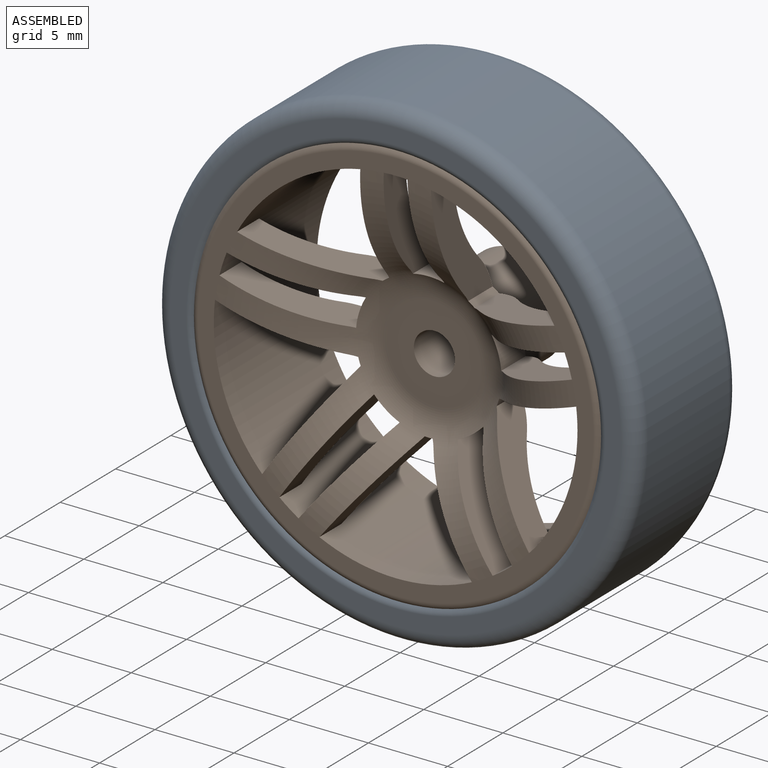
[diagram: assembled view]
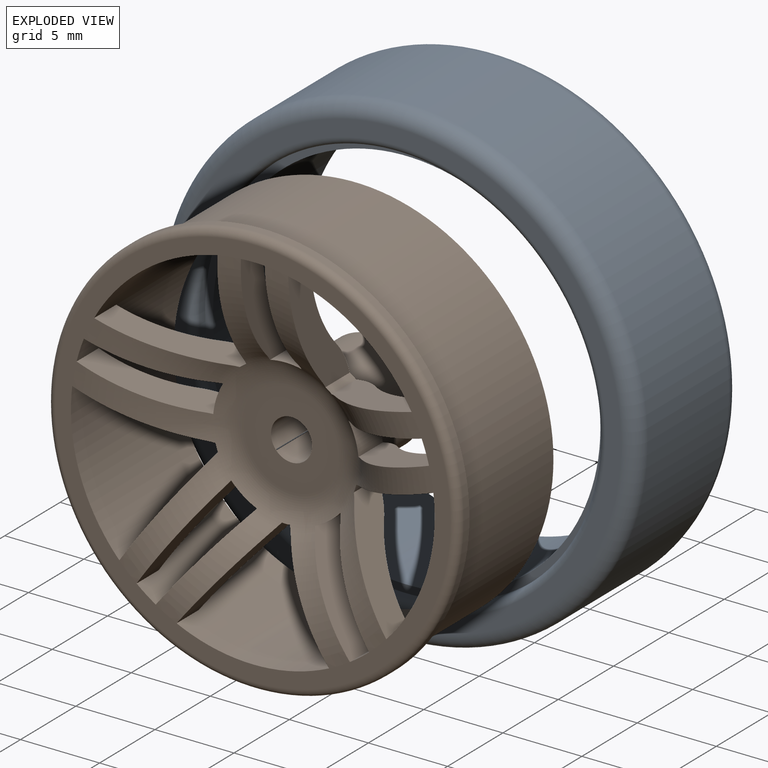
[diagram: exploded view]
GUIDED TOUR — FREECAD ASSEMBLY "5SpokeWheel1"

This assembly has 2 components, labeled P0..P1 below (a component is one placed body or linked part; the same part can appear more than once), held together by 1 modeled joint. A joint is a constraint between two components; its type names the relative motion it leaves free:
  FASTENED — locks the two components together rigidly (no relative motion).
Axis/direction vectors are unit vectors and 'through' points are millimeter coordinates, both in the assembly's world frame.

MATES
  1. FASTENED [Fixed] "Joint": P1 <-> P0, direction (0.000, -1.000, 0.000) through (0.00, -4.40, 0.00) mm

ASSEMBLY ORDER
  1. P0 — the base component [order heuristic]
  2. P1 [order heuristic]
Order-tag legend:
  [order heuristic] — this assembly is geometrically interlocked (no collision-free removal order exists), so components are listed in mate-graph order; insertion feasibility is not verified.

Of the 2 components, 2 carry a construction recipe — the FreeCAD feature program (sketches with constraints, then the solid features that consume them) that regenerates the part from scratch, quoted from this document or from the linked companion document it references; the rest are supplied as boundary geometry only. The tour below walks the components in assembly order: each is shown spotlighted twice — in the assembled view, then in the exploded view, where a leader line traces a displaced component back to its assembled socket (components that stay in place when exploded have no leader line; saturated green if recipe-attached, orange if geometry-only; every other component desaturated gray) — followed by its recipe or geometry summary and the mates that hold it.
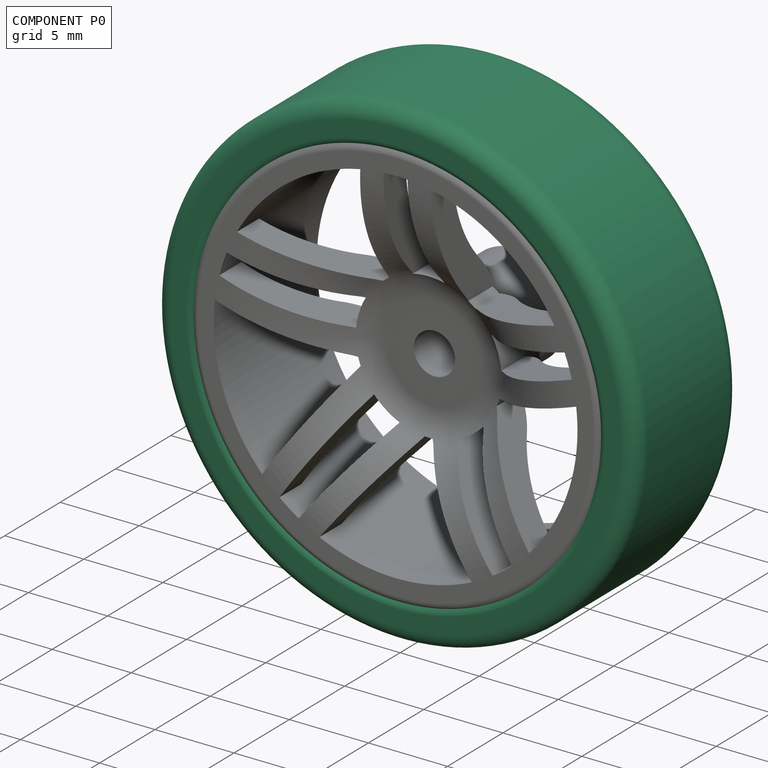
[diagram: component P0 — assembled]
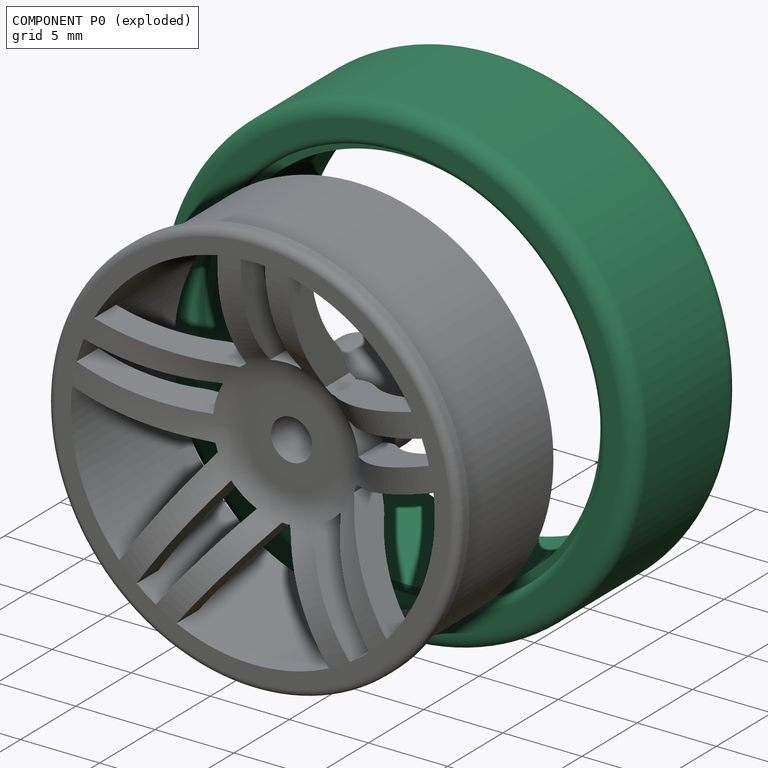
[diagram: component P0 — exploded]
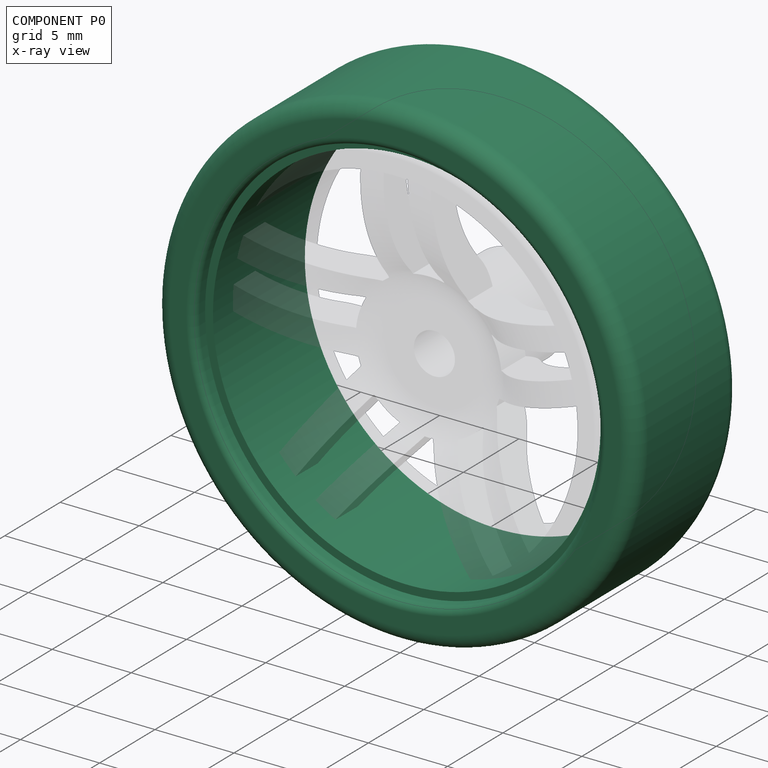
[diagram: component P0 — x-ray view]
COMPONENT P0 — recipe-attached ("SingleTire", a linked part whose construction recipe lives in a companion FreeCAD document of the same project; that document's serialized recipe follows).
Held by: FASTENED mate "Joint" to P1.
Construction recipe (the companion document, serialized — sketch geometry with constraints, then the solid features built on it; lengths are millimeters unless a unit is written):

FCSTD DOCUMENT  (FreeCAD 1.0R39285 (Git))
Label: Tire
License: All rights reserved
LicenseURL: https://en.wikipedia.org/wiki/All_rights_reserved
objects: PartDesign::Fillet×2, Sketcher::SketchObject×1, PartDesign::Revolution×1, App::Link×1, PartDesign::Body×1
note: 12 computed .brp shape members not serialized (recipe doc carries the construction recipe); baked Part::Feature solids carry a one-line shape summary decoded from their .brp
EXTERNAL_REF file=Dished5SpokeRim.FCStd obj=Link

FEATURE [Sketcher::SketchObject] Sketch
  ArcFitTolerance = 1e-06
  AttachmentSupport = -> [XY_Plane]
  FullyConstrained = false
  MakeInternals = false
  MapMode = 5
  expr: Constraints[15] = <<Wheel>>.Diameter
  expr: Constraints[31] = <<Wheel>>.TireThicnkess
  expr: Constraints[33] = <<Wheel>>.SingleThickness - <<Wheel>>.StemPoke
  expr: Constraints[35] = <<Wheel>>.TireBeadWidth
  expr: Constraints[36] = <<Wheel>>.RimLipThickness
  sketch-geometry (16):
    g0: LineSegment [constr] StartX=-1.3 StartY=6.15 StartZ=0 EndX=-1.3 EndY=-4.65 EndZ=0
    g1: LineSegment [constr] StartX=-1.3 StartY=-4.65 StartZ=0 EndX=-15.25 EndY=-4.65 EndZ=0
    g2: LineSegment [constr] StartX=-15.25 StartY=-4.65 StartZ=0 EndX=-15.25 EndY=4.65 EndZ=0
    g3: LineSegment [constr] StartX=-15.25 StartY=4.65 StartZ=0 EndX=-3.25 EndY=4.65 EndZ=0
    g4: LineSegment [constr] StartX=-3.25 StartY=4.65 StartZ=0 EndX=-3.25 EndY=6.15 EndZ=0
    g5: LineSegment [constr] StartX=-3.25 StartY=6.15 StartZ=0 EndX=-1.3 EndY=6.15 EndZ=0
    g6: LineSegment StartX=15.25 StartY=-4.65 StartZ=0 EndX=15.25 EndY=4.65 EndZ=0
    g7: LineSegment [constr] StartX=15.25 StartY=4.65 StartZ=0 EndX=12.75 EndY=4.65 EndZ=0
    g8: LineSegment [constr] StartX=12.75 StartY=4.65 StartZ=0 EndX=12.75 EndY=3.65 EndZ=0
    g9: LineSegment [constr] StartX=12.75 StartY=3.65 StartZ=0 EndX=12.25 EndY=3.65 EndZ=0
    g10: LineSegment [constr] StartX=12.25 StartY=3.65 StartZ=0 EndX=12.25 EndY=-3.65 EndZ=0
    g11: LineSegment StartX=12.25 StartY=-3.65 StartZ=0 EndX=12.75 EndY=-3.65 EndZ=0
    g12: LineSegment StartX=12.75 StartY=-3.65 StartZ=0 EndX=12.75 EndY=-4.65 EndZ=0
    g13: LineSegment StartX=12.75 StartY=-4.65 StartZ=0 EndX=15.25 EndY=-4.65 EndZ=0
    g14: LineSegment StartX=12.25 StartY=-3.65 StartZ=0 EndX=12.25 EndY=4.65 EndZ=0
    g15: LineSegment StartX=12.25 StartY=4.65 StartZ=0 EndX=15.25 EndY=4.65 EndZ=0
  constraints (44):
    c: Vertical(g0)
    c: Coincident(g0,g1)
    c: Horizontal(g1)
    c: Coincident(g1,g2)
    c: Vertical(g2)
    c: Coincident(g2,g3)
    c: Horizontal(g3)
    c: Coincident(g3,g4)
    c: Vertical(g4)
    c: Coincident(g4,g5)
    c: Coincident(g5,g0)
    c: Horizontal(g5)
    c: Coincident(g6,g7)
    c: Horizontal(g7)
    c: Equal(g2,g6)
    c: DistanceX(g1,g6) = 30.5
    c: Symmetric(g6,g6,g-1)
    c: Coincident(g7,g8)
    c: Coincident(g8,g9)
    c: Horizontal(g9)
    c: Coincident(g9,g10)
    c: Vertical(g10)
    c: Coincident(g10,g11)
    c: Horizontal(g11)
    c: Coincident(g11,g12)
    c: Vertical(g12)
    c: Coincident(g12,g13)
    c: Coincident(g13,g6)
    c: Horizontal(g13)
    c: Vertical(g8)
    c: Equal(g8,g12)
    c: Distance(g13,g13) = 2.5
    c: Symmetric(g1,g6,g-2)
    c: DistanceY(g6,g6) = 9.3
    c: Equal(g13,g7)
    c: DistanceX(g11,g11) = 0.5
    c: DistanceY(g12,g12) = 1
    c: Coincident(g10,g14)
    c: Vertical(g14)
    c: Coincident(g14,g15)
    c: Coincident(g15,g6)
    c: Horizontal(g15)
    c: DistanceX(g-1,g12) = 12.75
    c: DistanceX(g-1,g10) = 12.25
FEATURE [PartDesign::Revolution] Revolution
  Angle = 360
  Angle2 = 60
  Axis = (0,1,0)
  Base = (0,0,0)
  Profile = -> Sketch
  ReferenceAxis = -> Sketch [V_Axis]
  Refine = true
  Reversed = true
  Suppressed = false
  Type = 0
FEATURE [PartDesign::Fillet] Fillet
  Base = -> Revolution [Edge3]
  BaseFeature = -> Revolution
  Radius = 0.5
  Refine = true
  SupportTransform = false
  Suppressed = false
  UseAllEdges = false
FEATURE [App::Link] Link001  label="Wheel"
  LinkedObject = -> <external Dished5SpokeRim.FCStd>#Link
FEATURE [PartDesign::Fillet] Fillet001
  Base = -> Fillet [Edge10,Edge7]
  BaseFeature = -> Fillet
  Radius = 1
  Refine = true
  SupportTransform = false
  Suppressed = false
  UseAllEdges = false
FEATURE [PartDesign::Body] Body  label="SingleTire"
  AllowCompound = false
  Group = -> [Sketch,Revolution,Fillet,Fillet001]
  Origin = -> Origin
  Tip = -> Fillet001
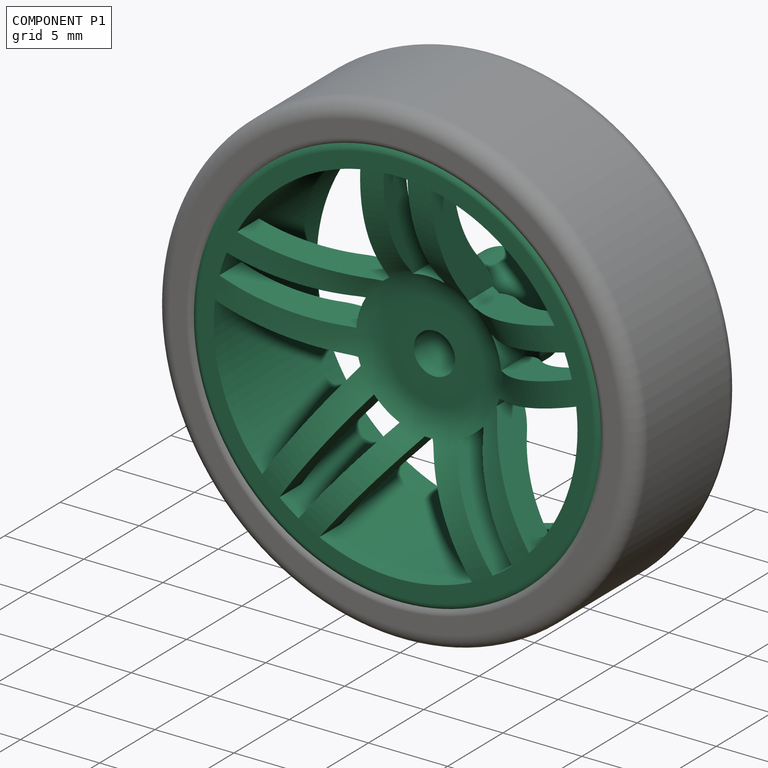
[diagram: component P1 — assembled]
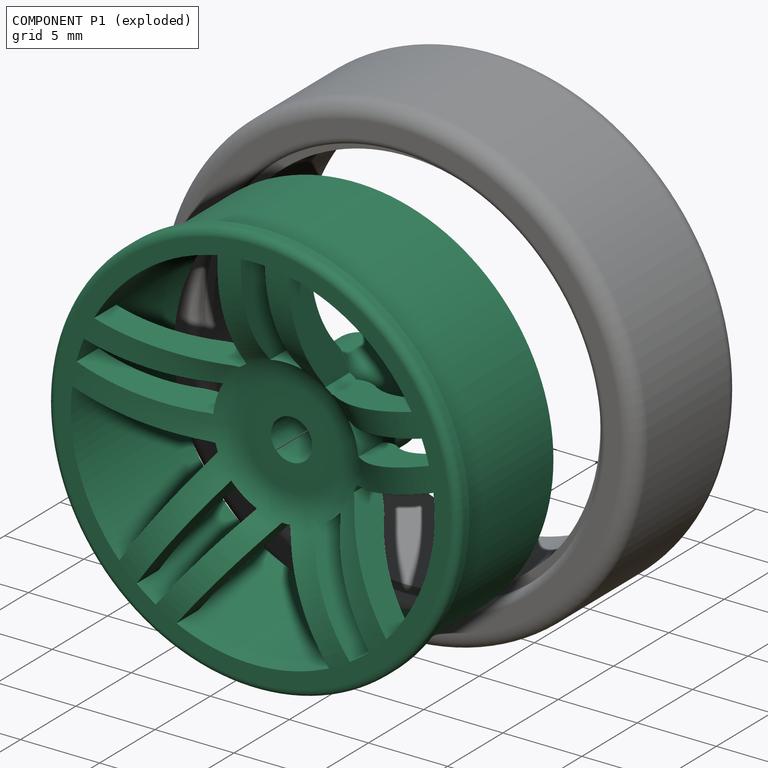
[diagram: component P1 — exploded]
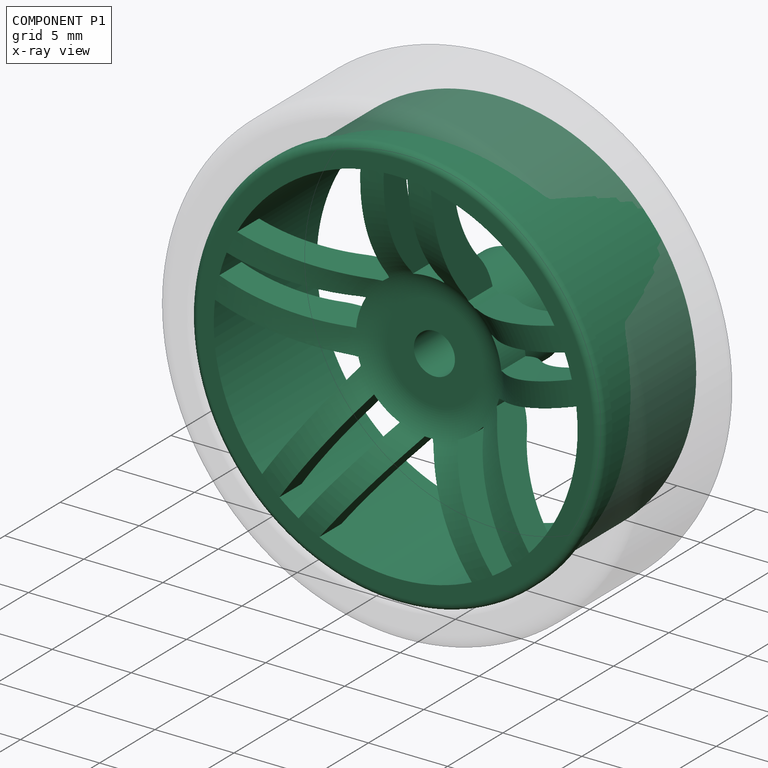
[diagram: component P1 — x-ray view]
COMPONENT P1 — recipe-attached ("5SpokeRim1", a linked part whose construction recipe lives in a companion FreeCAD document of the same project; that document's serialized recipe follows).
Held by: FASTENED mate "Joint" to P0.
Construction recipe (the companion document, serialized — sketch geometry with constraints, then the solid features built on it; lengths are millimeters unless a unit is written):

FCSTD DOCUMENT  (FreeCAD 1.0R39285 (Git))
Label: 5SpokeRim1
License: All rights reserved
LicenseURL: https://en.wikipedia.org/wiki/All_rights_reserved
objects: Sketcher::SketchObject×2, PartDesign::Revolution×1, PartDesign::Pocket×1, PartDesign::PolarPattern×1, App::Link×1, PartDesign::Fillet×1, PartDesign::Body×1
note: 16 computed .brp shape members not serialized (recipe doc carries the construction recipe); baked Part::Feature solids carry a one-line shape summary decoded from their .brp
EXTERNAL_REF file=../../../../Dimentions.FCStd obj=dd002

FEATURE [Sketcher::SketchObject] Sketch
  ArcFitTolerance = 1e-06
  AttachmentSupport = -> [XY_Plane]
  FullyConstrained = true
  MakeInternals = false
  MapMode = 5
  expr: Constraints[33] = <<Wheel>>.SingleThickness
  expr: Constraints[34] = <<Wheel>>.RimDiameter
  expr: Constraints[35] = <<Wheel>>.StemDiameter
  expr: Constraints[36] = <<Wheel>>.StemPoke
  expr: Constraints[37] = <<Wheel>>.AxelHoleDiameter
  expr: Constraints[52] = <<Wheel>>.RimLipThickness
  expr: Constraints[53] = <<Wheel>>.TireBeadWidth
  expr: Constraints[63] = <<Wheel>>.HubDip
  sketch-geometry (29):
    g0: LineSegment [constr] StartX=-1.3 StartY=5.4 StartZ=0 EndX=-1.3 EndY=-5.4 EndZ=0
    g1: LineSegment [constr] StartX=-1.3 StartY=-5.4 StartZ=0 EndX=-13 EndY=-5.4 EndZ=0
    g2: LineSegment [constr] StartX=-13 StartY=-5.4 StartZ=0 EndX=-13 EndY=3.9 EndZ=0
    g3: LineSegment [constr] StartX=-13 StartY=3.9 StartZ=0 EndX=-3.25 EndY=3.9 EndZ=0
    g4: LineSegment [constr] StartX=-3.25 StartY=3.9 StartZ=0 EndX=-3.25 EndY=5.4 EndZ=0
    g5: LineSegment [constr] StartX=-3.25 StartY=5.4 StartZ=0 EndX=-1.3 EndY=5.4 EndZ=0
    g6: LineSegment [constr] StartX=1.3 StartY=5.4 StartZ=0 EndX=1.3 EndY=-5.4 EndZ=0
    g7: LineSegment [constr] StartX=1.3 StartY=-5.4 StartZ=0 EndX=13 EndY=-5.4 EndZ=0
    g8: LineSegment [constr] StartX=13 StartY=-5.4 StartZ=0 EndX=13 EndY=3.9 EndZ=0
    g9: LineSegment [constr] StartX=13 StartY=3.9 StartZ=0 EndX=11.5 EndY=3.9 EndZ=0
    g10: LineSegment [constr] StartX=11.5 StartY=3.9 StartZ=0 EndX=11.5 EndY=-1.4 EndZ=0
    g11: LineSegment [constr] StartX=11.5 StartY=-1.4 StartZ=0 EndX=3.25 EndY=-1.4 EndZ=0
    g12: LineSegment [constr] StartX=3.25 StartY=-1.4 StartZ=0 EndX=3.25 EndY=5.4 EndZ=0
    g13: LineSegment StartX=3.25 StartY=5.4 StartZ=0 EndX=1.3 EndY=5.4 EndZ=0
    g14: LineSegment [constr] StartX=11.5 StartY=-1.4 StartZ=0 EndX=11.5 EndY=-5.4 EndZ=0
    g15: LineSegment StartX=11.5 StartY=3.9 StartZ=0 EndX=12.5 EndY=3.9 EndZ=0
    g16: LineSegment StartX=12.5 StartY=3.9 StartZ=0 EndX=12.5 EndY=-4.4 EndZ=0
    g17: LineSegment StartX=12.5 StartY=-4.4 StartZ=0 EndX=13 EndY=-4.4 EndZ=0
    g18: LineSegment StartX=13 StartY=-4.4 StartZ=0 EndX=13 EndY=-5.4 EndZ=0
    g19: LineSegment StartX=1.3 StartY=5.4 StartZ=0 EndX=1.3 EndY=-1.9 EndZ=0
    g20: LineSegment StartX=1.3 StartY=-1.9 StartZ=0 EndX=3 EndY=-1.9 EndZ=0
    g21: ArcOfCircle CenterX=3 CenterY=-4.67143 CenterZ=0 NormalX=0 NormalY=0 NormalZ=1 AngleXU=0 Radius=2.77143 StartAngle=0.789582 EndAngle=1.5708
    g22: ArcOfCircle CenterX=11.5 CenterY=3.9 CenterZ=0 NormalX=0 NormalY=0 NormalZ=1 AngleXU=0 Radius=9.3 StartAngle=3.93117 EndAngle=4.71239
    g23: LineSegment StartX=11.5 StartY=-5.4 StartZ=0 EndX=13 EndY=-5.4 EndZ=0
    g24: LineSegment StartX=3.25 StartY=5.4 StartZ=0 EndX=3.25 EndY=-0.00294118 EndZ=0
    g25: ArcOfCircle CenterX=3.25 CenterY=-4.41933 CenterZ=0 NormalX=0 NormalY=0 NormalZ=1 AngleXU=0 Radius=4.41639 StartAngle=0.789582 EndAngle=1.5708
    g26: ArcOfCircle CenterX=11.5 CenterY=3.9 CenterZ=0 NormalX=0 NormalY=0 NormalZ=1 AngleXU=0 Radius=7.3 StartAngle=3.93117 EndAngle=4.71239
    g27: LineSegment StartX=11.5 StartY=-3.4 StartZ=0 EndX=11.5 EndY=3.9 EndZ=0
    g28: LineSegment [constr] StartX=4.95148 StartY=-2.70355 StartZ=0 EndX=6.35976 EndY=-1.28343 EndZ=0
  constraints (78):
    c: Vertical(g0)
    c: Coincident(g0,g1)
    c: Horizontal(g1)
    c: Coincident(g1,g2)
    c: Vertical(g2)
    c: Coincident(g2,g3)
    c: Horizontal(g3)
    c: Coincident(g3,g4)
    c: Vertical(g4)
    c: Coincident(g4,g5)
    c: Coincident(g5,g0)
    c: Horizontal(g5)
    c: Coincident(g6,g7)
    c: Horizontal(g7)
    c: Coincident(g7,g8)
    c: Vertical(g8)
    c: Coincident(g8,g9)
    c: Horizontal(g9)
    c: Coincident(g9,g10)
    c: Vertical(g10)
    c: Coincident(g10,g11)
    c: Horizontal(g11)
    c: Coincident(g11,g12)
    c: Vertical(g12)
    c: Coincident(g12,g13)
    c: Coincident(g13,g6)
    c: Symmetric(g0,g6,g-2)
    c: Horizontal(g13)
    c: Equal(g13,g5)
    c: Symmetric(g6,g6,g-1)
    c: Equal(g0,g6)
    c: Equal(g2,g8)
    c: Equal(g1,g7)
    c: DistanceY(g6,g6) = 10.8
    c: DistanceX(g1,g7) = 26
    c: Distance(g4,g12) = 6.5
    c: DistanceY(g9,g12) = 1.5
    c: Distance(g0,g6) = 2.6
    c: DistanceX(g10,g7) = 1.5
    c: Coincident(g14,g10)
    c: PointOnObject(g14,g7)
    c: Vertical(g14)
    c: DistanceY(g14,g14) = 4
    c: Coincident(g9,g15)
    c: PointOnObject(g15,g9)
    c: Coincident(g15,g16)
    c: Vertical(g16)
    c: Coincident(g16,g17)
    c: Horizontal(g17)
    c: Coincident(g17,g18)
    c: Coincident(g18,g7)
    c: Vertical(g18)
    c: DistanceY(g18,g18) = 1
    c: DistanceX(g17,g17) = 0.5
    c: Coincident(g6,g19)
    c: PointOnObject(g19,g6)
    c: Coincident(g19,g20)
    c: Horizontal(g20)
    c: Tangent(g20,g21) = 1.5708
    c: Tangent(g21,g22) = 1.5708
    c: Coincident(g22,g14)
    c: Tangent(g22,g23) = -1.5708
    c: Coincident(g23,g7)
    c: DistanceY(g6,g19) = 3.5
    c: DistanceX(g-1,g20) = 3
    c: Coincident(g12,g24)
    c: PointOnObject(g24,g12)
    c: Perpendicular(g24,g25) = 4.71239
    c: Tangent(g25,g26) = 1.5708
    c: Perpendicular(g26,g27) = 1.5708
    c: Coincident(g27,g9)
    c: Vertical(g27)
    c: Horizontal(g26,g9)
    c: DistanceY(g14,g26) = 2
    c: Coincident(g28,g21)
    c: Coincident(g28,g25)
    c: Perpendicular(g22,g28)
    c: Perpendicular(g26,g28)
FEATURE [PartDesign::Revolution] Revolution
  Angle = 360
  Angle2 = 60
  Axis = (0,1,0)
  Base = (0,0,0)
  Profile = -> Sketch
  ReferenceAxis = -> Sketch [V_Axis]
  Refine = true
  Reversed = true
  Suppressed = false
  Type = 0
FEATURE [Sketcher::SketchObject] Sketch001
  ArcFitTolerance = 1e-06
  AttachmentSupport = -> [XZ_Plane]
  ExternalGeometry = -> [Revolution]
  FullyConstrained = true
  MakeInternals = false
  MapMode = 5
  Placement = pos=(0,0,0) rot=(1,0,0;1.5708rad)
  sketch-geometry (18):
    g0: LineSegment StartX=-0.75 StartY=11.4755 StartZ=0 EndX=-1 EndY=4.5 EndZ=0
    g1: LineSegment [constr] StartX=-1 StartY=4.5 StartZ=0 EndX=1 EndY=4.5 EndZ=0
    g2: LineSegment StartX=1 StartY=4.5 StartZ=0 EndX=0.75 EndY=11.4755 EndZ=0
    g3: LineSegment [constr] StartX=0.75 StartY=11.4755 StartZ=0 EndX=-0.75 EndY=11.4755 EndZ=0
    g4: Circle [constr] CenterX=0 CenterY=0 CenterZ=0 NormalX=0 NormalY=0 NormalZ=1 AngleXU=0 Radius=4.60977
    g5: LineSegment [constr] StartX=0 StartY=0 StartZ=0 EndX=10.9371 EndY=3.5537 EndZ=0
    g6: LineSegment [constr] StartX=3.97074 StartY=2.34163 StartZ=0 EndX=4.58877 EndY=0.43952 EndZ=0
    g7: LineSegment [constr] StartX=4.58877 StartY=0.43952 StartZ=0 EndX=11.1456 EndY=2.83284 EndZ=0
    g8: LineSegment [constr] StartX=3.97074 StartY=2.34163 StartZ=0 EndX=10.6821 EndY=4.25942 EndZ=0
    g9: LineSegment [constr] StartX=10.6821 StartY=4.25942 StartZ=0 EndX=11.1456 EndY=2.83284 EndZ=0
    g10: LineSegment StartX=2.50278 StartY=3.87119 StartZ=0 EndX=2.23724 EndY=11.2803 EndZ=0
    g11: LineSegment StartX=2.90832 StartY=3.57655 StartZ=0 EndX=10.0368 EndY=5.61354 EndZ=0
    g12: ArcOfCircle CenterX=0 CenterY=0 CenterZ=0 NormalX=0 NormalY=0 NormalZ=1 AngleXU=0 Radius=4.60977 StartAngle=0.88808 EndAngle=0.996875
    g13: ArcOfCircle CenterX=0 CenterY=0 CenterZ=0 NormalX=0 NormalY=0 NormalZ=1 AngleXU=0 Radius=11.5 StartAngle=0.50995 EndAngle=1.37501
    g14: ArcOfCircle CenterX=0 CenterY=0 CenterZ=0 NormalX=0 NormalY=0 NormalZ=1 AngleXU=0 Radius=11.5 StartAngle=1.50553 EndAngle=1.63606
    g15: ArcOfCircle CenterX=7e-16 CenterY=0 CenterZ=0 NormalX=0 NormalY=0 NormalZ=1 AngleXU=0 Radius=4.60977 StartAngle=1.35213 EndAngle=1.78947
    g16: LineSegment [constr] StartX=0.75 StartY=11.4755 StartZ=0 EndX=2.23724 EndY=11.2803 EndZ=0
    g17: LineSegment [constr] StartX=10.0368 StartY=5.61354 StartZ=0 EndX=10.6821 EndY=4.25942 EndZ=0
  constraints (47):
    c: Coincident(g0,g1)
    c: Coincident(g1,g2)
    c: Coincident(g2,g3)
    c: Coincident(g3,g0)
    c: Symmetric(g0,g2,g-2)
    c: Symmetric(g0,g1,g-2)
    c: DistanceY(g-1,g1) = 4.5
    c: PointOnObject(g2,g-3)
    c: Distance(g1,g1) = 2
    c: Distance(g3,g3) = 1.5
    c: Coincident(g4,g-1)
    c: PointOnObject(g1,g4)
    c: Coincident(g5,g4)
    c: PointOnObject(g5,g-3)
    c: Angle(g5,g-2) = 1.25664
    c: PointOnObject(g6,g4)
    c: Coincident(g6,g7)
    c: Coincident(g6,g8)
    c: PointOnObject(g8,g-3)
    c: Equal(g6,g1)
    c: Symmetric(g6,g6,g5)
    c: Coincident(g9,g8)
    c: Coincident(g9,g7)
    c: Symmetric(g7,g8,g5)
    c: Equal(g9,g3)
    c: PointOnObject(g10,g4)
    c: PointOnObject(g10,g-3)
    c: Coincident(g12,g4)
    c: Coincident(g12,g10)
    c: Coincident(g12,g11)
    c: Coincident(g13,g4)
    c: Coincident(g13,g10)
    c: Coincident(g13,g11)
    c: Parallel(g11,g8)
    c: Parallel(g10,g2)
    c: Distance(g2,g10) = 1.5
    c: Coincident(g14,g0)
    c: Coincident(g14,g4)
    c: Coincident(g15,g0)
    c: Coincident(g1,g15)
    c: Equal(g15,g4)
    c: PointOnObject(g14,g2)
    c: Equal(g17,g16)
    c: Coincident(g16,g14)
    c: Coincident(g16,g10)
    c: Coincident(g17,g11)
    c: Coincident(g8,g17)
FEATURE [PartDesign::Pocket] Pocket
  BaseFeature = -> Revolution
  Direction = (0,1,-2e-16)
  Length = 5
  Length2 = 5
  Midplane = true
  Profile = -> Sketch001
  ReferenceAxis = -> Sketch001 [N_Axis]
  Refine = true
  Suppressed = false
  Type = 1
FEATURE [PartDesign::PolarPattern] PolarPattern
  Angle = 360
  Axis = -> Sketch001 [N_Axis]
  BaseFeature = -> Pocket
  Mode = 0
  Occurrences = 5
  Offset = 120
  Originals = -> [Pocket]
  Refine = true
  Suppressed = false
  TransformMode = 0
FEATURE [App::Link] Link  label="Wheel"
  LinkedObject = -> <external ../../../../Dimentions.FCStd>#dd002
FEATURE [PartDesign::Fillet] Fillet
  Base = -> PolarPattern [Edge26]
  BaseFeature = -> PolarPattern
  Radius = 0.5
  Refine = true
  SupportTransform = false
  Suppressed = false
  UseAllEdges = false
FEATURE [PartDesign::Body] Body  label="5SpokeRim1"
  AllowCompound = false
  Group = -> [Sketch,Revolution,Sketch001,Pocket,PolarPattern,Fillet]
  Origin = -> Origin
  Tip = -> Fillet
PROVENANCE & LICENSES
Assembly and component geometry: a FreeCAD (.FCStd) document from a public repository crawl; components, placements and joints were extracted with FreeCAD and each solid tessellated.
Construction recipes: the document's own serialized feature recipes (and, for linked parts, the recipes of companion documents from the same project).
License: gpl-3.0.
Joints: native FreeCAD joints and A2plus constraints are mapped to standard mate types.
Verification: 2 of this assembly's 2 components carry a construction recipe (2 from linked companion documents in the same project); the rest are geometry-only. Every component's tessellation passed the extraction mesh gates (mesh-volume checksum against the B-rep where available, bounding-box inflation <= 2%).
Renders: orthographic iso camera (az 35 / el 25); the floor grid conveys scale (grid pitch printed in each image; no ruler). In the exploded view each component is displaced by its stored offset vector: the offsets alone carry the explosion direction (mate normal/axis signs are not orientation cues and do not encode it), and separation distances are assigned per mate-chain, not proportionally to assembly-order depth.
